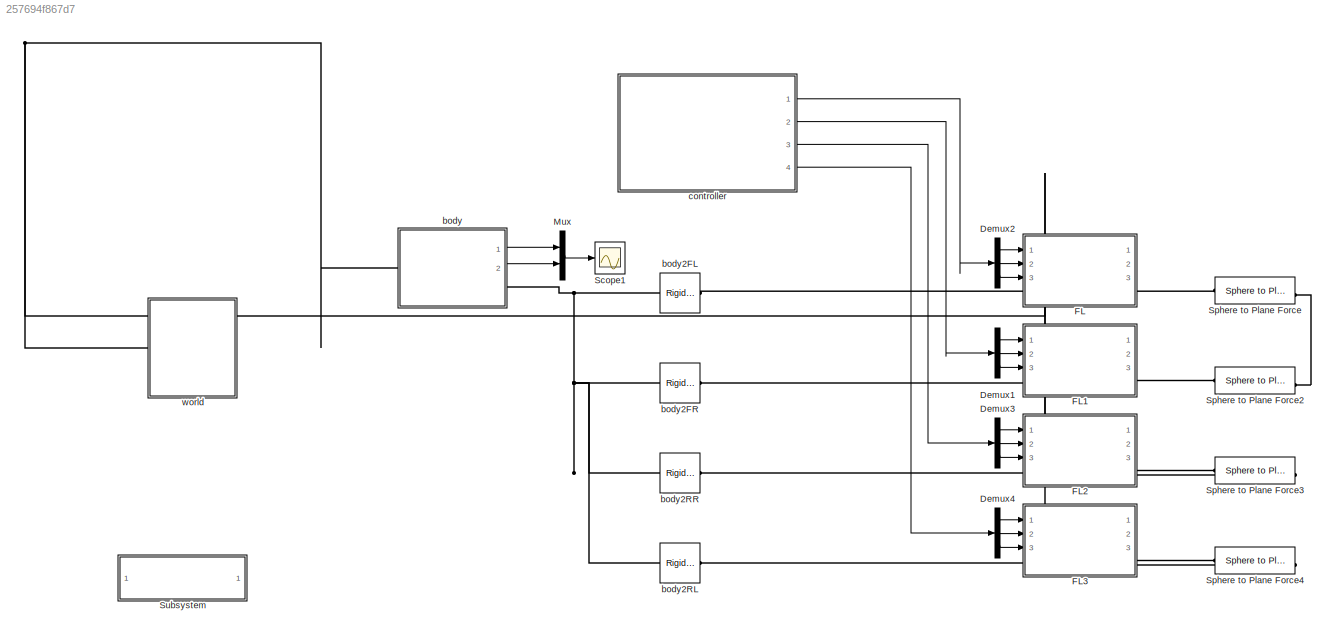
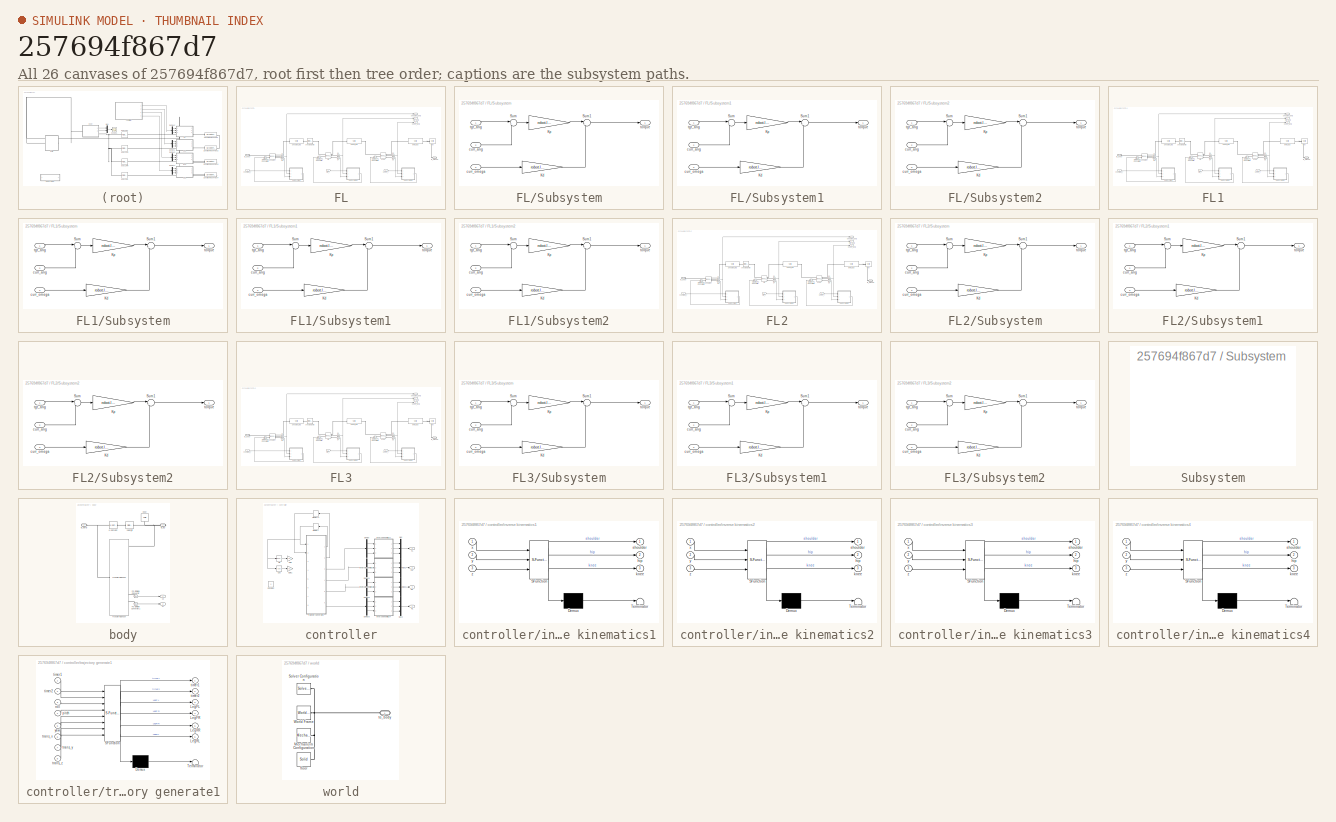
[diagram: thumbnail index - all 26 canvases of the model, root first then tree order]
MODEL slx_257694f867d7
KIND model
CONFIG AbsTol = auto
CONFIG EnableMultiTasking = on
CONFIG FixedStep = 0.001
CONFIG MaxStep = auto
CONFIG MinStep = auto
CONFIG RelTol = 1e-3
CONFIG SampleTimeConstraint = Unconstrained
CONFIG Solver = FixedStepAuto
CONFIG SolverName = FixedStepAuto
CONFIG StartTime = 0.0
CONFIG StopTime = 10
BLOCK [Demux] Demux1
  DisplayOption = bar
  Outputs = 3
  Ports = [1, 3]
BLOCK [Demux] Demux2
  DisplayOption = bar
  Outputs = 3
  Ports = [1, 3]
BLOCK [Demux] Demux3
  DisplayOption = bar
  Outputs = 3
  Ports = [1, 3]
BLOCK [Demux] Demux4
  DisplayOption = bar
  Outputs = 3
  Ports = [1, 3]
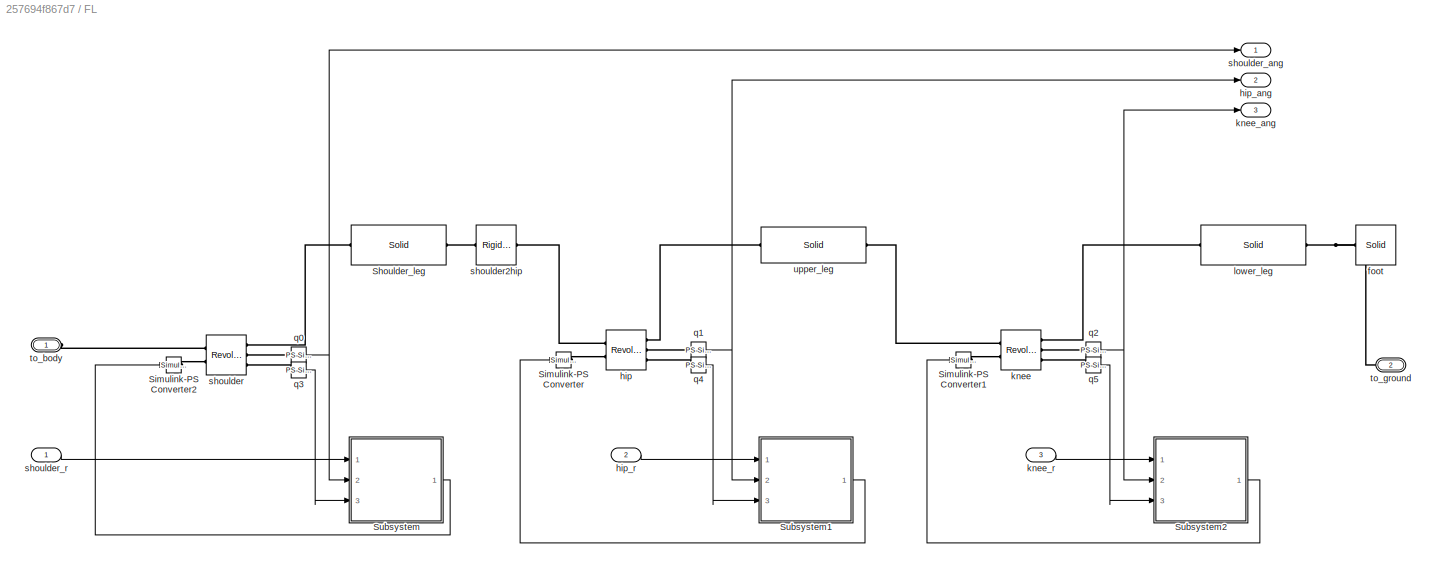
BLOCK [SubSystem] FL
  Ports = [3, 3, 0, 0, 0, 1, 1]
  RequestExecContextInheritance = off
BLOCK [Reference] FL/Shoulder_leg  REF=sm_lib/Body Elements/Solid
  Ports = [0, 0, 0, 0, 0, 1, 1]
  SourceBlock = sm_lib/Body Elements/Solid
  SourceProductBaseCode = MS
  SourceProductName = Simscape Multibody
  SourceType = Solid
BLOCK [Reference] FL/Simulink-PS Converter  REF=nesl_utility/Simulink-PS
Converter
  Ports = [1, 0, 0, 0, 0, 0, 1]
  SourceBlock = nesl_utility/Simulink-PS\nConverter
  SourceProductBaseCode = SS
  SourceProductName = Simscape
  SourceType = Simulink-PS\nConverter
BLOCK [Reference] FL/Simulink-PS Converter1  REF=nesl_utility/Simulink-PS
Converter
  Ports = [1, 0, 0, 0, 0, 0, 1]
  SourceBlock = nesl_utility/Simulink-PS\nConverter
  SourceProductBaseCode = SS
  SourceProductName = Simscape
  SourceType = Simulink-PS\nConverter
BLOCK [Reference] FL/Simulink-PS Converter2  REF=nesl_utility/Simulink-PS
Converter
  Ports = [1, 0, 0, 0, 0, 0, 1]
  SourceBlock = nesl_utility/Simulink-PS\nConverter
  SourceProductBaseCode = SS
  SourceProductName = Simscape
  SourceType = Simulink-PS\nConverter
BLOCK [SubSystem] FL/Subsystem
  Ports = [3, 1]
  RequestExecContextInheritance = off
BLOCK [Gain] FL/Subsystem/Kd
  Gain = robot.legPosKd
  OutDataTypeStr = Inherit: Inherit via internal rule
  ParamDataTypeStr = Inherit: Inherit via internal rule
  SaturateOnIntegerOverflow = off
BLOCK [Gain] FL/Subsystem/Kp
  Gain = robot.legPosKp
  OutDataTypeStr = Inherit: Inherit via internal rule
  ParamDataTypeStr = Inherit: Inherit via internal rule
  SaturateOnIntegerOverflow = off
BLOCK [Sum] FL/Subsystem/Sum
  IconShape = round
  InputSameDT = off
  Inputs = |+-
  OutDataTypeStr = Inherit: Inherit via internal rule
  Ports = [2, 1]
  SaturateOnIntegerOverflow = off
BLOCK [Sum] FL/Subsystem/Sum1
  IconShape = round
  InputSameDT = off
  Inputs = |+-
  OutDataTypeStr = Inherit: Inherit via internal rule
  Ports = [2, 1]
  SaturateOnIntegerOverflow = off
BLOCK [Inport] FL/Subsystem/curr_ang
  IconDisplay = Port number
  Port = 2
BLOCK [Inport] FL/Subsystem/curr_omega
  IconDisplay = Port number
  Port = 3
BLOCK [Inport] FL/Subsystem/tgt_ang
  IconDisplay = Port number
BLOCK [Outport] FL/Subsystem/torque
  IconDisplay = Port number
BLOCK [SubSystem] FL/Subsystem1
  Ports = [3, 1]
  RequestExecContextInheritance = off
BLOCK [Gain] FL/Subsystem1/Kd
  Gain = robot.legPosKd
  OutDataTypeStr = Inherit: Inherit via internal rule
  ParamDataTypeStr = Inherit: Inherit via internal rule
  SaturateOnIntegerOverflow = off
BLOCK [Gain] FL/Subsystem1/Kp
  Gain = robot.legPosKp
  OutDataTypeStr = Inherit: Inherit via internal rule
  ParamDataTypeStr = Inherit: Inherit via internal rule
  SaturateOnIntegerOverflow = off
BLOCK [Sum] FL/Subsystem1/Sum
  IconShape = round
  InputSameDT = off
  Inputs = |+-
  OutDataTypeStr = Inherit: Inherit via internal rule
  Ports = [2, 1]
  SaturateOnIntegerOverflow = off
BLOCK [Sum] FL/Subsystem1/Sum1
  IconShape = round
  InputSameDT = off
  Inputs = |+-
  OutDataTypeStr = Inherit: Inherit via internal rule
  Ports = [2, 1]
  SaturateOnIntegerOverflow = off
BLOCK [Inport] FL/Subsystem1/curr_ang
  IconDisplay = Port number
  Port = 2
BLOCK [Inport] FL/Subsystem1/curr_omega
  IconDisplay = Port number
  Port = 3
BLOCK [Inport] FL/Subsystem1/tgt_ang
  IconDisplay = Port number
BLOCK [Outport] FL/Subsystem1/torque
  IconDisplay = Port number
BLOCK [SubSystem] FL/Subsystem2
  Ports = [3, 1]
  RequestExecContextInheritance = off
BLOCK [Gain] FL/Subsystem2/Kd
  Gain = robot.legPosKd
  OutDataTypeStr = Inherit: Inherit via internal rule
  ParamDataTypeStr = Inherit: Inherit via internal rule
  SaturateOnIntegerOverflow = off
BLOCK [Gain] FL/Subsystem2/Kp
  Gain = robot.legPosKp
  OutDataTypeStr = Inherit: Inherit via internal rule
  ParamDataTypeStr = Inherit: Inherit via internal rule
  SaturateOnIntegerOverflow = off
BLOCK [Sum] FL/Subsystem2/Sum
  IconShape = round
  InputSameDT = off
  Inputs = |+-
  OutDataTypeStr = Inherit: Inherit via internal rule
  Ports = [2, 1]
  SaturateOnIntegerOverflow = off
BLOCK [Sum] FL/Subsystem2/Sum1
  IconShape = round
  InputSameDT = off
  Inputs = |+-
  OutDataTypeStr = Inherit: Inherit via internal rule
  Ports = [2, 1]
  SaturateOnIntegerOverflow = off
BLOCK [Inport] FL/Subsystem2/curr_ang
  IconDisplay = Port number
  Port = 2
BLOCK [Inport] FL/Subsystem2/curr_omega
  IconDisplay = Port number
  Port = 3
BLOCK [Inport] FL/Subsystem2/tgt_ang
  IconDisplay = Port number
BLOCK [Outport] FL/Subsystem2/torque
  IconDisplay = Port number
BLOCK [Reference] FL/foot  REF=sm_lib/Body Elements/Solid
  Ports = [0, 0, 0, 0, 0, 0, 1]
  SourceBlock = sm_lib/Body Elements/Solid
  SourceProductBaseCode = MS
  SourceProductName = Simscape Multibody
  SourceType = Solid
BLOCK [Reference] FL/hip  REF=sm_lib/Joints/Revolute Joint
  Ports = [0, 0, 0, 0, 0, 2, 3]
  SourceBlock = sm_lib/Joints/Revolute Joint
  SourceProductBaseCode = MS
  SourceProductName = Simscape Multibody
  SourceType = Revolute Joint
BLOCK [Outport] FL/hip_ang
  IconDisplay = Port number
  Port = 2
BLOCK [Inport] FL/hip_r
  IconDisplay = Port number
  Port = 2
BLOCK [Reference] FL/knee  REF=sm_lib/Joints/Revolute Joint
  Ports = [0, 0, 0, 0, 0, 2, 3]
  SourceBlock = sm_lib/Joints/Revolute Joint
  SourceProductBaseCode = MS
  SourceProductName = Simscape Multibody
  SourceType = Revolute Joint
BLOCK [Outport] FL/knee_ang
  IconDisplay = Port number
  Port = 3
BLOCK [Inport] FL/knee_r
  IconDisplay = Port number
  Port = 3
BLOCK [Reference] FL/lower_leg  REF=sm_lib/Body Elements/Solid
  Ports = [0, 0, 0, 0, 0, 1, 1]
  SourceBlock = sm_lib/Body Elements/Solid
  SourceProductBaseCode = MS
  SourceProductName = Simscape Multibody
  SourceType = Solid
BLOCK [Reference] FL/q0  REF=nesl_utility/PS-Simulink
Converter
  Ports = [0, 1, 0, 0, 0, 1]
  SourceBlock = nesl_utility/PS-Simulink\nConverter
  SourceProductBaseCode = SS
  SourceProductName = Simscape
  SourceType = PS-Simulink\nConverter
BLOCK [Reference] FL/q1  REF=nesl_utility/PS-Simulink
Converter
  Ports = [0, 1, 0, 0, 0, 1]
  SourceBlock = nesl_utility/PS-Simulink\nConverter
  SourceProductBaseCode = SS
  SourceProductName = Simscape
  SourceType = PS-Simulink\nConverter
BLOCK [Reference] FL/q2  REF=nesl_utility/PS-Simulink
Converter
  Ports = [0, 1, 0, 0, 0, 1]
  SourceBlock = nesl_utility/PS-Simulink\nConverter
  SourceProductBaseCode = SS
  SourceProductName = Simscape
  SourceType = PS-Simulink\nConverter
BLOCK [Reference] FL/q3  REF=nesl_utility/PS-Simulink
Converter
  Ports = [0, 1, 0, 0, 0, 1]
  SourceBlock = nesl_utility/PS-Simulink\nConverter
  SourceProductBaseCode = SS
  SourceProductName = Simscape
  SourceType = PS-Simulink\nConverter
BLOCK [Reference] FL/q4  REF=nesl_utility/PS-Simulink
Converter
  Ports = [0, 1, 0, 0, 0, 1]
  SourceBlock = nesl_utility/PS-Simulink\nConverter
  SourceProductBaseCode = SS
  SourceProductName = Simscape
  SourceType = PS-Simulink\nConverter
BLOCK [Reference] FL/q5  REF=nesl_utility/PS-Simulink
Converter
  Ports = [0, 1, 0, 0, 0, 1]
  SourceBlock = nesl_utility/PS-Simulink\nConverter
  SourceProductBaseCode = SS
  SourceProductName = Simscape
  SourceType = PS-Simulink\nConverter
BLOCK [Reference] FL/shoulder  REF=sm_lib/Joints/Revolute Joint
  Ports = [0, 0, 0, 0, 0, 2, 3]
  SourceBlock = sm_lib/Joints/Revolute Joint
  SourceProductBaseCode = MS
  SourceProductName = Simscape Multibody
  SourceType = Revolute Joint
BLOCK [Reference] FL/shoulder2hip  REF=sm_lib/Frames and
Transforms/Rigid
Transform
  Ports = [0, 0, 0, 0, 0, 1, 1]
  SourceBlock = sm_lib/Frames and\nTransforms/Rigid\nTransform
  SourceProductBaseCode = MS
  SourceProductName = Simscape Multibody
  SourceType = Rigid\nTransform
BLOCK [Outport] FL/shoulder_ang
  IconDisplay = Port number
BLOCK [Inport] FL/shoulder_r
  IconDisplay = Port number
BLOCK [PMIOPort] FL/to_body
  Side = Left
BLOCK [PMIOPort] FL/to_ground
  Port = 2
  Side = Right
BLOCK [Reference] FL/upper_leg  REF=sm_lib/Body Elements/Solid
  Ports = [0, 0, 0, 0, 0, 1, 1]
  SourceBlock = sm_lib/Body Elements/Solid
  SourceProductBaseCode = MS
  SourceProductName = Simscape Multibody
  SourceType = Solid
BLOCK [SubSystem] FL1
  Ports = [3, 3, 0, 0, 0, 1, 1]
  RequestExecContextInheritance = off
BLOCK [Reference] FL1/Shoulder_leg  REF=sm_lib/Body Elements/Solid
  Ports = [0, 0, 0, 0, 0, 1, 1]
  SourceBlock = sm_lib/Body Elements/Solid
  SourceProductBaseCode = MS
  SourceProductName = Simscape Multibody
  SourceType = Solid
BLOCK [Reference] FL1/Simulink-PS Converter  REF=nesl_utility/Simulink-PS
Converter
  Ports = [1, 0, 0, 0, 0, 0, 1]
  SourceBlock = nesl_utility/Simulink-PS\nConverter
  SourceProductBaseCode = SS
  SourceProductName = Simscape
  SourceType = Simulink-PS\nConverter
BLOCK [Reference] FL1/Simulink-PS Converter1  REF=nesl_utility/Simulink-PS
Converter
  Ports = [1, 0, 0, 0, 0, 0, 1]
  SourceBlock = nesl_utility/Simulink-PS\nConverter
  SourceProductBaseCode = SS
  SourceProductName = Simscape
  SourceType = Simulink-PS\nConverter
BLOCK [Reference] FL1/Simulink-PS Converter2  REF=nesl_utility/Simulink-PS
Converter
  Ports = [1, 0, 0, 0, 0, 0, 1]
  SourceBlock = nesl_utility/Simulink-PS\nConverter
  SourceProductBaseCode = SS
  SourceProductName = Simscape
  SourceType = Simulink-PS\nConverter
BLOCK [SubSystem] FL1/Subsystem
  Ports = [3, 1]
  RequestExecContextInheritance = off
BLOCK [Gain] FL1/Subsystem/Kd
  Gain = robot.legPosKd
  OutDataTypeStr = Inherit: Inherit via internal rule
  ParamDataTypeStr = Inherit: Inherit via internal rule
  SaturateOnIntegerOverflow = off
BLOCK [Gain] FL1/Subsystem/Kp
  Gain = robot.legPosKp
  OutDataTypeStr = Inherit: Inherit via internal rule
  ParamDataTypeStr = Inherit: Inherit via internal rule
  SaturateOnIntegerOverflow = off
BLOCK [Sum] FL1/Subsystem/Sum
  IconShape = round
  InputSameDT = off
  Inputs = |+-
  OutDataTypeStr = Inherit: Inherit via internal rule
  Ports = [2, 1]
  SaturateOnIntegerOverflow = off
BLOCK [Sum] FL1/Subsystem/Sum1
  IconShape = round
  InputSameDT = off
  Inputs = |+-
  OutDataTypeStr = Inherit: Inherit via internal rule
  Ports = [2, 1]
  SaturateOnIntegerOverflow = off
BLOCK [Inport] FL1/Subsystem/curr_ang
  IconDisplay = Port number
  Port = 2
BLOCK [Inport] FL1/Subsystem/curr_omega
  IconDisplay = Port number
  Port = 3
BLOCK [Inport] FL1/Subsystem/tgt_ang
  IconDisplay = Port number
BLOCK [Outport] FL1/Subsystem/torque
  IconDisplay = Port number
BLOCK [SubSystem] FL1/Subsystem1
  Ports = [3, 1]
  RequestExecContextInheritance = off
BLOCK [Gain] FL1/Subsystem1/Kd
  Gain = robot.legPosKd
  OutDataTypeStr = Inherit: Inherit via internal rule
  ParamDataTypeStr = Inherit: Inherit via internal rule
  SaturateOnIntegerOverflow = off
BLOCK [Gain] FL1/Subsystem1/Kp
  Gain = robot.legPosKp
  OutDataTypeStr = Inherit: Inherit via internal rule
  ParamDataTypeStr = Inherit: Inherit via internal rule
  SaturateOnIntegerOverflow = off
BLOCK [Sum] FL1/Subsystem1/Sum
  IconShape = round
  InputSameDT = off
  Inputs = |+-
  OutDataTypeStr = Inherit: Inherit via internal rule
  Ports = [2, 1]
  SaturateOnIntegerOverflow = off
BLOCK [Sum] FL1/Subsystem1/Sum1
  IconShape = round
  InputSameDT = off
  Inputs = |+-
  OutDataTypeStr = Inherit: Inherit via internal rule
  Ports = [2, 1]
  SaturateOnIntegerOverflow = off
BLOCK [Inport] FL1/Subsystem1/curr_ang
  IconDisplay = Port number
  Port = 2
BLOCK [Inport] FL1/Subsystem1/curr_omega
  IconDisplay = Port number
  Port = 3
BLOCK [Inport] FL1/Subsystem1/tgt_ang
  IconDisplay = Port number
BLOCK [Outport] FL1/Subsystem1/torque
  IconDisplay = Port number
BLOCK [SubSystem] FL1/Subsystem2
  Ports = [3, 1]
  RequestExecContextInheritance = off
BLOCK [Gain] FL1/Subsystem2/Kd
  Gain = robot.legPosKd
  OutDataTypeStr = Inherit: Inherit via internal rule
  ParamDataTypeStr = Inherit: Inherit via internal rule
  SaturateOnIntegerOverflow = off
BLOCK [Gain] FL1/Subsystem2/Kp
  Gain = robot.legPosKp
  OutDataTypeStr = Inherit: Inherit via internal rule
  ParamDataTypeStr = Inherit: Inherit via internal rule
  SaturateOnIntegerOverflow = off
BLOCK [Sum] FL1/Subsystem2/Sum
  IconShape = round
  InputSameDT = off
  Inputs = |+-
  OutDataTypeStr = Inherit: Inherit via internal rule
  Ports = [2, 1]
  SaturateOnIntegerOverflow = off
BLOCK [Sum] FL1/Subsystem2/Sum1
  IconShape = round
  InputSameDT = off
  Inputs = |+-
  OutDataTypeStr = Inherit: Inherit via internal rule
  Ports = [2, 1]
  SaturateOnIntegerOverflow = off
BLOCK [Inport] FL1/Subsystem2/curr_ang
  IconDisplay = Port number
  Port = 2
BLOCK [Inport] FL1/Subsystem2/curr_omega
  IconDisplay = Port number
  Port = 3
BLOCK [Inport] FL1/Subsystem2/tgt_ang
  IconDisplay = Port number
BLOCK [Outport] FL1/Subsystem2/torque
  IconDisplay = Port number
BLOCK [Reference] FL1/foot  REF=sm_lib/Body Elements/Solid
  Ports = [0, 0, 0, 0, 0, 0, 1]
  SourceBlock = sm_lib/Body Elements/Solid
  SourceProductBaseCode = MS
  SourceProductName = Simscape Multibody
  SourceType = Solid
BLOCK [Reference] FL1/hip  REF=sm_lib/Joints/Revolute Joint
  Ports = [0, 0, 0, 0, 0, 2, 3]
  SourceBlock = sm_lib/Joints/Revolute Joint
  SourceProductBaseCode = MS
  SourceProductName = Simscape Multibody
  SourceType = Revolute Joint
BLOCK [Outport] FL1/hip_ang
  IconDisplay = Port number
  Port = 2
BLOCK [Inport] FL1/hip_r
  IconDisplay = Port number
  Port = 2
BLOCK [Reference] FL1/knee  REF=sm_lib/Joints/Revolute Joint
  Ports = [0, 0, 0, 0, 0, 2, 3]
  SourceBlock = sm_lib/Joints/Revolute Joint
  SourceProductBaseCode = MS
  SourceProductName = Simscape Multibody
  SourceType = Revolute Joint
BLOCK [Outport] FL1/knee_ang
  IconDisplay = Port number
  Port = 3
BLOCK [Inport] FL1/knee_r
  IconDisplay = Port number
  Port = 3
BLOCK [Reference] FL1/lower_leg  REF=sm_lib/Body Elements/Solid
  Ports = [0, 0, 0, 0, 0, 1, 1]
  SourceBlock = sm_lib/Body Elements/Solid
  SourceProductBaseCode = MS
  SourceProductName = Simscape Multibody
  SourceType = Solid
BLOCK [Reference] FL1/q0  REF=nesl_utility/PS-Simulink
Converter
  Ports = [0, 1, 0, 0, 0, 1]
  SourceBlock = nesl_utility/PS-Simulink\nConverter
  SourceProductBaseCode = SS
  SourceProductName = Simscape
  SourceType = PS-Simulink\nConverter
BLOCK [Reference] FL1/q1  REF=nesl_utility/PS-Simulink
Converter
  Ports = [0, 1, 0, 0, 0, 1]
  SourceBlock = nesl_utility/PS-Simulink\nConverter
  SourceProductBaseCode = SS
  SourceProductName = Simscape
  SourceType = PS-Simulink\nConverter
BLOCK [Reference] FL1/q2  REF=nesl_utility/PS-Simulink
Converter
  Ports = [0, 1, 0, 0, 0, 1]
  SourceBlock = nesl_utility/PS-Simulink\nConverter
  SourceProductBaseCode = SS
  SourceProductName = Simscape
  SourceType = PS-Simulink\nConverter
BLOCK [Reference] FL1/q3  REF=nesl_utility/PS-Simulink
Converter
  Ports = [0, 1, 0, 0, 0, 1]
  SourceBlock = nesl_utility/PS-Simulink\nConverter
  SourceProductBaseCode = SS
  SourceProductName = Simscape
  SourceType = PS-Simulink\nConverter
BLOCK [Reference] FL1/q4  REF=nesl_utility/PS-Simulink
Converter
  Ports = [0, 1, 0, 0, 0, 1]
  SourceBlock = nesl_utility/PS-Simulink\nConverter
  SourceProductBaseCode = SS
  SourceProductName = Simscape
  SourceType = PS-Simulink\nConverter
BLOCK [Reference] FL1/q5  REF=nesl_utility/PS-Simulink
Converter
  Ports = [0, 1, 0, 0, 0, 1]
  SourceBlock = nesl_utility/PS-Simulink\nConverter
  SourceProductBaseCode = SS
  SourceProductName = Simscape
  SourceType = PS-Simulink\nConverter
BLOCK [Reference] FL1/shoulder  REF=sm_lib/Joints/Revolute Joint
  Ports = [0, 0, 0, 0, 0, 2, 3]
  SourceBlock = sm_lib/Joints/Revolute Joint
  SourceProductBaseCode = MS
  SourceProductName = Simscape Multibody
  SourceType = Revolute Joint
BLOCK [Reference] FL1/shoulder2hip  REF=sm_lib/Frames and
Transforms/Rigid
Transform
  Ports = [0, 0, 0, 0, 0, 1, 1]
  SourceBlock = sm_lib/Frames and\nTransforms/Rigid\nTransform
  SourceProductBaseCode = MS
  SourceProductName = Simscape Multibody
  SourceType = Rigid\nTransform
BLOCK [Outport] FL1/shoulder_ang
  IconDisplay = Port number
BLOCK [Inport] FL1/shoulder_r
  IconDisplay = Port number
BLOCK [PMIOPort] FL1/to_body
  Side = Left
BLOCK [PMIOPort] FL1/to_ground
  Port = 2
  Side = Right
BLOCK [Reference] FL1/upper_leg  REF=sm_lib/Body Elements/Solid
  Ports = [0, 0, 0, 0, 0, 1, 1]
  SourceBlock = sm_lib/Body Elements/Solid
  SourceProductBaseCode = MS
  SourceProductName = Simscape Multibody
  SourceType = Solid
BLOCK [SubSystem] FL2
  Ports = [3, 3, 0, 0, 0, 1, 1]
  RequestExecContextInheritance = off
BLOCK [Reference] FL2/Shoulder_leg  REF=sm_lib/Body Elements/Solid
  Ports = [0, 0, 0, 0, 0, 1, 1]
  SourceBlock = sm_lib/Body Elements/Solid
  SourceProductBaseCode = MS
  SourceProductName = Simscape Multibody
  SourceType = Solid
BLOCK [Reference] FL2/Simulink-PS Converter  REF=nesl_utility/Simulink-PS
Converter
  Ports = [1, 0, 0, 0, 0, 0, 1]
  SourceBlock = nesl_utility/Simulink-PS\nConverter
  SourceProductBaseCode = SS
  SourceProductName = Simscape
  SourceType = Simulink-PS\nConverter
BLOCK [Reference] FL2/Simulink-PS Converter1  REF=nesl_utility/Simulink-PS
Converter
  Ports = [1, 0, 0, 0, 0, 0, 1]
  SourceBlock = nesl_utility/Simulink-PS\nConverter
  SourceProductBaseCode = SS
  SourceProductName = Simscape
  SourceType = Simulink-PS\nConverter
BLOCK [Reference] FL2/Simulink-PS Converter2  REF=nesl_utility/Simulink-PS
Converter
  Ports = [1, 0, 0, 0, 0, 0, 1]
  SourceBlock = nesl_utility/Simulink-PS\nConverter
  SourceProductBaseCode = SS
  SourceProductName = Simscape
  SourceType = Simulink-PS\nConverter
BLOCK [SubSystem] FL2/Subsystem
  Ports = [3, 1]
  RequestExecContextInheritance = off
BLOCK [Gain] FL2/Subsystem/Kd
  Gain = robot.legPosKd
  OutDataTypeStr = Inherit: Inherit via internal rule
  ParamDataTypeStr = Inherit: Inherit via internal rule
  SaturateOnIntegerOverflow = off
BLOCK [Gain] FL2/Subsystem/Kp
  Gain = robot.legPosKp
  OutDataTypeStr = Inherit: Inherit via internal rule
  ParamDataTypeStr = Inherit: Inherit via internal rule
  SaturateOnIntegerOverflow = off
BLOCK [Sum] FL2/Subsystem/Sum
  IconShape = round
  InputSameDT = off
  Inputs = |+-
  OutDataTypeStr = Inherit: Inherit via internal rule
  Ports = [2, 1]
  SaturateOnIntegerOverflow = off
BLOCK [Sum] FL2/Subsystem/Sum1
  IconShape = round
  InputSameDT = off
  Inputs = |+-
  OutDataTypeStr = Inherit: Inherit via internal rule
  Ports = [2, 1]
  SaturateOnIntegerOverflow = off
BLOCK [Inport] FL2/Subsystem/curr_ang
  IconDisplay = Port number
  Port = 2
BLOCK [Inport] FL2/Subsystem/curr_omega
  IconDisplay = Port number
  Port = 3
BLOCK [Inport] FL2/Subsystem/tgt_ang
  IconDisplay = Port number
BLOCK [Outport] FL2/Subsystem/torque
  IconDisplay = Port number
BLOCK [SubSystem] FL2/Subsystem1
  Ports = [3, 1]
  RequestExecContextInheritance = off
BLOCK [Gain] FL2/Subsystem1/Kd
  Gain = robot.legPosKd
  OutDataTypeStr = Inherit: Inherit via internal rule
  ParamDataTypeStr = Inherit: Inherit via internal rule
  SaturateOnIntegerOverflow = off
BLOCK [Gain] FL2/Subsystem1/Kp
  Gain = robot.legPosKp
  OutDataTypeStr = Inherit: Inherit via internal rule
  ParamDataTypeStr = Inherit: Inherit via internal rule
  SaturateOnIntegerOverflow = off
BLOCK [Sum] FL2/Subsystem1/Sum
  IconShape = round
  InputSameDT = off
  Inputs = |+-
  OutDataTypeStr = Inherit: Inherit via internal rule
  Ports = [2, 1]
  SaturateOnIntegerOverflow = off
BLOCK [Sum] FL2/Subsystem1/Sum1
  IconShape = round
  InputSameDT = off
  Inputs = |+-
  OutDataTypeStr = Inherit: Inherit via internal rule
  Ports = [2, 1]
  SaturateOnIntegerOverflow = off
BLOCK [Inport] FL2/Subsystem1/curr_ang
  IconDisplay = Port number
  Port = 2
BLOCK [Inport] FL2/Subsystem1/curr_omega
  IconDisplay = Port number
  Port = 3
BLOCK [Inport] FL2/Subsystem1/tgt_ang
  IconDisplay = Port number
BLOCK [Outport] FL2/Subsystem1/torque
  IconDisplay = Port number
BLOCK [SubSystem] FL2/Subsystem2
  Ports = [3, 1]
  RequestExecContextInheritance = off
BLOCK [Gain] FL2/Subsystem2/Kd
  Gain = robot.legPosKd
  OutDataTypeStr = Inherit: Inherit via internal rule
  ParamDataTypeStr = Inherit: Inherit via internal rule
  SaturateOnIntegerOverflow = off
BLOCK [Gain] FL2/Subsystem2/Kp
  Gain = robot.legPosKp
  OutDataTypeStr = Inherit: Inherit via internal rule
  ParamDataTypeStr = Inherit: Inherit via internal rule
  SaturateOnIntegerOverflow = off
BLOCK [Sum] FL2/Subsystem2/Sum
  IconShape = round
  InputSameDT = off
  Inputs = |+-
  OutDataTypeStr = Inherit: Inherit via internal rule
  Ports = [2, 1]
  SaturateOnIntegerOverflow = off
BLOCK [Sum] FL2/Subsystem2/Sum1
  IconShape = round
  InputSameDT = off
  Inputs = |+-
  OutDataTypeStr = Inherit: Inherit via internal rule
  Ports = [2, 1]
  SaturateOnIntegerOverflow = off
BLOCK [Inport] FL2/Subsystem2/curr_ang
  IconDisplay = Port number
  Port = 2
BLOCK [Inport] FL2/Subsystem2/curr_omega
  IconDisplay = Port number
  Port = 3
BLOCK [Inport] FL2/Subsystem2/tgt_ang
  IconDisplay = Port number
BLOCK [Outport] FL2/Subsystem2/torque
  IconDisplay = Port number
BLOCK [Reference] FL2/foot  REF=sm_lib/Body Elements/Solid
  Ports = [0, 0, 0, 0, 0, 0, 1]
  SourceBlock = sm_lib/Body Elements/Solid
  SourceProductBaseCode = MS
  SourceProductName = Simscape Multibody
  SourceType = Solid
BLOCK [Reference] FL2/hip  REF=sm_lib/Joints/Revolute Joint
  Ports = [0, 0, 0, 0, 0, 2, 3]
  SourceBlock = sm_lib/Joints/Revolute Joint
  SourceProductBaseCode = MS
  SourceProductName = Simscape Multibody
  SourceType = Revolute Joint
BLOCK [Outport] FL2/hip_ang
  IconDisplay = Port number
  Port = 2
BLOCK [Inport] FL2/hip_r
  IconDisplay = Port number
  Port = 2
BLOCK [Reference] FL2/knee  REF=sm_lib/Joints/Revolute Joint
  Ports = [0, 0, 0, 0, 0, 2, 3]
  SourceBlock = sm_lib/Joints/Revolute Joint
  SourceProductBaseCode = MS
  SourceProductName = Simscape Multibody
  SourceType = Revolute Joint
BLOCK [Outport] FL2/knee_ang
  IconDisplay = Port number
  Port = 3
BLOCK [Inport] FL2/knee_r
  IconDisplay = Port number
  Port = 3
BLOCK [Reference] FL2/lower_leg  REF=sm_lib/Body Elements/Solid
  Ports = [0, 0, 0, 0, 0, 1, 1]
  SourceBlock = sm_lib/Body Elements/Solid
  SourceProductBaseCode = MS
  SourceProductName = Simscape Multibody
  SourceType = Solid
BLOCK [Reference] FL2/q0  REF=nesl_utility/PS-Simulink
Converter
  Ports = [0, 1, 0, 0, 0, 1]
  SourceBlock = nesl_utility/PS-Simulink\nConverter
  SourceProductBaseCode = SS
  SourceProductName = Simscape
  SourceType = PS-Simulink\nConverter
BLOCK [Reference] FL2/q1  REF=nesl_utility/PS-Simulink
Converter
  Ports = [0, 1, 0, 0, 0, 1]
  SourceBlock = nesl_utility/PS-Simulink\nConverter
  SourceProductBaseCode = SS
  SourceProductName = Simscape
  SourceType = PS-Simulink\nConverter
BLOCK [Reference] FL2/q2  REF=nesl_utility/PS-Simulink
Converter
  Ports = [0, 1, 0, 0, 0, 1]
  SourceBlock = nesl_utility/PS-Simulink\nConverter
  SourceProductBaseCode = SS
  SourceProductName = Simscape
  SourceType = PS-Simulink\nConverter
BLOCK [Reference] FL2/q3  REF=nesl_utility/PS-Simulink
Converter
  Ports = [0, 1, 0, 0, 0, 1]
  SourceBlock = nesl_utility/PS-Simulink\nConverter
  SourceProductBaseCode = SS
  SourceProductName = Simscape
  SourceType = PS-Simulink\nConverter
BLOCK [Reference] FL2/q4  REF=nesl_utility/PS-Simulink
Converter
  Ports = [0, 1, 0, 0, 0, 1]
  SourceBlock = nesl_utility/PS-Simulink\nConverter
  SourceProductBaseCode = SS
  SourceProductName = Simscape
  SourceType = PS-Simulink\nConverter
BLOCK [Reference] FL2/q5  REF=nesl_utility/PS-Simulink
Converter
  Ports = [0, 1, 0, 0, 0, 1]
  SourceBlock = nesl_utility/PS-Simulink\nConverter
  SourceProductBaseCode = SS
  SourceProductName = Simscape
  SourceType = PS-Simulink\nConverter
BLOCK [Reference] FL2/shoulder  REF=sm_lib/Joints/Revolute Joint
  Ports = [0, 0, 0, 0, 0, 2, 3]
  SourceBlock = sm_lib/Joints/Revolute Joint
  SourceProductBaseCode = MS
  SourceProductName = Simscape Multibody
  SourceType = Revolute Joint
BLOCK [Reference] FL2/shoulder2hip  REF=sm_lib/Frames and
Transforms/Rigid
Transform
  Ports = [0, 0, 0, 0, 0, 1, 1]
  SourceBlock = sm_lib/Frames and\nTransforms/Rigid\nTransform
  SourceProductBaseCode = MS
  SourceProductName = Simscape Multibody
  SourceType = Rigid\nTransform
BLOCK [Outport] FL2/shoulder_ang
  IconDisplay = Port number
BLOCK [Inport] FL2/shoulder_r
  IconDisplay = Port number
BLOCK [PMIOPort] FL2/to_body
  Side = Left
BLOCK [PMIOPort] FL2/to_ground
  Port = 2
  Side = Right
BLOCK [Reference] FL2/upper_leg  REF=sm_lib/Body Elements/Solid
  Ports = [0, 0, 0, 0, 0, 1, 1]
  SourceBlock = sm_lib/Body Elements/Solid
  SourceProductBaseCode = MS
  SourceProductName = Simscape Multibody
  SourceType = Solid
BLOCK [SubSystem] FL3
  Ports = [3, 3, 0, 0, 0, 1, 1]
  RequestExecContextInheritance = off
BLOCK [Reference] FL3/Shoulder_leg  REF=sm_lib/Body Elements/Solid
  Ports = [0, 0, 0, 0, 0, 1, 1]
  SourceBlock = sm_lib/Body Elements/Solid
  SourceProductBaseCode = MS
  SourceProductName = Simscape Multibody
  SourceType = Solid
BLOCK [Reference] FL3/Simulink-PS Converter  REF=nesl_utility/Simulink-PS
Converter
  Ports = [1, 0, 0, 0, 0, 0, 1]
  SourceBlock = nesl_utility/Simulink-PS\nConverter
  SourceProductBaseCode = SS
  SourceProductName = Simscape
  SourceType = Simulink-PS\nConverter
BLOCK [Reference] FL3/Simulink-PS Converter1  REF=nesl_utility/Simulink-PS
Converter
  Ports = [1, 0, 0, 0, 0, 0, 1]
  SourceBlock = nesl_utility/Simulink-PS\nConverter
  SourceProductBaseCode = SS
  SourceProductName = Simscape
  SourceType = Simulink-PS\nConverter
BLOCK [Reference] FL3/Simulink-PS Converter2  REF=nesl_utility/Simulink-PS
Converter
  Ports = [1, 0, 0, 0, 0, 0, 1]
  SourceBlock = nesl_utility/Simulink-PS\nConverter
  SourceProductBaseCode = SS
  SourceProductName = Simscape
  SourceType = Simulink-PS\nConverter
BLOCK [SubSystem] FL3/Subsystem
  Ports = [3, 1]
  RequestExecContextInheritance = off
BLOCK [Gain] FL3/Subsystem/Kd
  Gain = robot.legPosKd
  OutDataTypeStr = Inherit: Inherit via internal rule
  ParamDataTypeStr = Inherit: Inherit via internal rule
  SaturateOnIntegerOverflow = off
BLOCK [Gain] FL3/Subsystem/Kp
  Gain = robot.legPosKp
  OutDataTypeStr = Inherit: Inherit via internal rule
  ParamDataTypeStr = Inherit: Inherit via internal rule
  SaturateOnIntegerOverflow = off
BLOCK [Sum] FL3/Subsystem/Sum
  IconShape = round
  InputSameDT = off
  Inputs = |+-
  OutDataTypeStr = Inherit: Inherit via internal rule
  Ports = [2, 1]
  SaturateOnIntegerOverflow = off
BLOCK [Sum] FL3/Subsystem/Sum1
  IconShape = round
  InputSameDT = off
  Inputs = |+-
  OutDataTypeStr = Inherit: Inherit via internal rule
  Ports = [2, 1]
  SaturateOnIntegerOverflow = off
BLOCK [Inport] FL3/Subsystem/curr_ang
  IconDisplay = Port number
  Port = 2
BLOCK [Inport] FL3/Subsystem/curr_omega
  IconDisplay = Port number
  Port = 3
BLOCK [Inport] FL3/Subsystem/tgt_ang
  IconDisplay = Port number
BLOCK [Outport] FL3/Subsystem/torque
  IconDisplay = Port number
BLOCK [SubSystem] FL3/Subsystem1
  Ports = [3, 1]
  RequestExecContextInheritance = off
BLOCK [Gain] FL3/Subsystem1/Kd
  Gain = robot.legPosKd
  OutDataTypeStr = Inherit: Inherit via internal rule
  ParamDataTypeStr = Inherit: Inherit via internal rule
  SaturateOnIntegerOverflow = off
BLOCK [Gain] FL3/Subsystem1/Kp
  Gain = robot.legPosKp
  OutDataTypeStr = Inherit: Inherit via internal rule
  ParamDataTypeStr = Inherit: Inherit via internal rule
  SaturateOnIntegerOverflow = off
BLOCK [Sum] FL3/Subsystem1/Sum
  IconShape = round
  InputSameDT = off
  Inputs = |+-
  OutDataTypeStr = Inherit: Inherit via internal rule
  Ports = [2, 1]
  SaturateOnIntegerOverflow = off
BLOCK [Sum] FL3/Subsystem1/Sum1
  IconShape = round
  InputSameDT = off
  Inputs = |+-
  OutDataTypeStr = Inherit: Inherit via internal rule
  Ports = [2, 1]
  SaturateOnIntegerOverflow = off
BLOCK [Inport] FL3/Subsystem1/curr_ang
  IconDisplay = Port number
  Port = 2
BLOCK [Inport] FL3/Subsystem1/curr_omega
  IconDisplay = Port number
  Port = 3
BLOCK [Inport] FL3/Subsystem1/tgt_ang
  IconDisplay = Port number
BLOCK [Outport] FL3/Subsystem1/torque
  IconDisplay = Port number
BLOCK [SubSystem] FL3/Subsystem2
  Ports = [3, 1]
  RequestExecContextInheritance = off
BLOCK [Gain] FL3/Subsystem2/Kd
  Gain = robot.legPosKd
  OutDataTypeStr = Inherit: Inherit via internal rule
  ParamDataTypeStr = Inherit: Inherit via internal rule
  SaturateOnIntegerOverflow = off
BLOCK [Gain] FL3/Subsystem2/Kp
  Gain = robot.legPosKp
  OutDataTypeStr = Inherit: Inherit via internal rule
  ParamDataTypeStr = Inherit: Inherit via internal rule
  SaturateOnIntegerOverflow = off
BLOCK [Sum] FL3/Subsystem2/Sum
  IconShape = round
  InputSameDT = off
  Inputs = |+-
  OutDataTypeStr = Inherit: Inherit via internal rule
  Ports = [2, 1]
  SaturateOnIntegerOverflow = off
BLOCK [Sum] FL3/Subsystem2/Sum1
  IconShape = round
  InputSameDT = off
  Inputs = |+-
  OutDataTypeStr = Inherit: Inherit via internal rule
  Ports = [2, 1]
  SaturateOnIntegerOverflow = off
BLOCK [Inport] FL3/Subsystem2/curr_ang
  IconDisplay = Port number
  Port = 2
BLOCK [Inport] FL3/Subsystem2/curr_omega
  IconDisplay = Port number
  Port = 3
BLOCK [Inport] FL3/Subsystem2/tgt_ang
  IconDisplay = Port number
BLOCK [Outport] FL3/Subsystem2/torque
  IconDisplay = Port number
BLOCK [Reference] FL3/foot  REF=sm_lib/Body Elements/Solid
  Ports = [0, 0, 0, 0, 0, 0, 1]
  SourceBlock = sm_lib/Body Elements/Solid
  SourceProductBaseCode = MS
  SourceProductName = Simscape Multibody
  SourceType = Solid
BLOCK [Reference] FL3/hip  REF=sm_lib/Joints/Revolute Joint
  Ports = [0, 0, 0, 0, 0, 2, 3]
  SourceBlock = sm_lib/Joints/Revolute Joint
  SourceProductBaseCode = MS
  SourceProductName = Simscape Multibody
  SourceType = Revolute Joint
BLOCK [Outport] FL3/hip_ang
  IconDisplay = Port number
  Port = 2
BLOCK [Inport] FL3/hip_r
  IconDisplay = Port number
  Port = 2
BLOCK [Reference] FL3/knee  REF=sm_lib/Joints/Revolute Joint
  Ports = [0, 0, 0, 0, 0, 2, 3]
  SourceBlock = sm_lib/Joints/Revolute Joint
  SourceProductBaseCode = MS
  SourceProductName = Simscape Multibody
  SourceType = Revolute Joint
BLOCK [Outport] FL3/knee_ang
  IconDisplay = Port number
  Port = 3
BLOCK [Inport] FL3/knee_r
  IconDisplay = Port number
  Port = 3
BLOCK [Reference] FL3/lower_leg  REF=sm_lib/Body Elements/Solid
  Ports = [0, 0, 0, 0, 0, 1, 1]
  SourceBlock = sm_lib/Body Elements/Solid
  SourceProductBaseCode = MS
  SourceProductName = Simscape Multibody
  SourceType = Solid
BLOCK [Reference] FL3/q0  REF=nesl_utility/PS-Simulink
Converter
  Ports = [0, 1, 0, 0, 0, 1]
  SourceBlock = nesl_utility/PS-Simulink\nConverter
  SourceProductBaseCode = SS
  SourceProductName = Simscape
  SourceType = PS-Simulink\nConverter
BLOCK [Reference] FL3/q1  REF=nesl_utility/PS-Simulink
Converter
  Ports = [0, 1, 0, 0, 0, 1]
  SourceBlock = nesl_utility/PS-Simulink\nConverter
  SourceProductBaseCode = SS
  SourceProductName = Simscape
  SourceType = PS-Simulink\nConverter
BLOCK [Reference] FL3/q2  REF=nesl_utility/PS-Simulink
Converter
  Ports = [0, 1, 0, 0, 0, 1]
  SourceBlock = nesl_utility/PS-Simulink\nConverter
  SourceProductBaseCode = SS
  SourceProductName = Simscape
  SourceType = PS-Simulink\nConverter
BLOCK [Reference] FL3/q3  REF=nesl_utility/PS-Simulink
Converter
  Ports = [0, 1, 0, 0, 0, 1]
  SourceBlock = nesl_utility/PS-Simulink\nConverter
  SourceProductBaseCode = SS
  SourceProductName = Simscape
  SourceType = PS-Simulink\nConverter
BLOCK [Reference] FL3/q4  REF=nesl_utility/PS-Simulink
Converter
  Ports = [0, 1, 0, 0, 0, 1]
  SourceBlock = nesl_utility/PS-Simulink\nConverter
  SourceProductBaseCode = SS
  SourceProductName = Simscape
  SourceType = PS-Simulink\nConverter
BLOCK [Reference] FL3/q5  REF=nesl_utility/PS-Simulink
Converter
  Ports = [0, 1, 0, 0, 0, 1]
  SourceBlock = nesl_utility/PS-Simulink\nConverter
  SourceProductBaseCode = SS
  SourceProductName = Simscape
  SourceType = PS-Simulink\nConverter
BLOCK [Reference] FL3/shoulder  REF=sm_lib/Joints/Revolute Joint
  Ports = [0, 0, 0, 0, 0, 2, 3]
  SourceBlock = sm_lib/Joints/Revolute Joint
  SourceProductBaseCode = MS
  SourceProductName = Simscape Multibody
  SourceType = Revolute Joint
BLOCK [Reference] FL3/shoulder2hip  REF=sm_lib/Frames and
Transforms/Rigid
Transform
  Ports = [0, 0, 0, 0, 0, 1, 1]
  SourceBlock = sm_lib/Frames and\nTransforms/Rigid\nTransform
  SourceProductBaseCode = MS
  SourceProductName = Simscape Multibody
  SourceType = Rigid\nTransform
BLOCK [Outport] FL3/shoulder_ang
  IconDisplay = Port number
BLOCK [Inport] FL3/shoulder_r
  IconDisplay = Port number
BLOCK [PMIOPort] FL3/to_body
  Side = Left
BLOCK [PMIOPort] FL3/to_ground
  Port = 2
  Side = Right
BLOCK [Reference] FL3/upper_leg  REF=sm_lib/Body Elements/Solid
  Ports = [0, 0, 0, 0, 0, 1, 1]
  SourceBlock = sm_lib/Body Elements/Solid
  SourceProductBaseCode = MS
  SourceProductName = Simscape Multibody
  SourceType = Solid
BLOCK [Mux] Mux
  DisplayOption = bar
  Inputs = 2
  Ports = [2, 1]
BLOCK [Scope] Scope1
  Floating = off
  NumInputPorts = 1
  Ports = [1]
  ScopeSpecificationString = Simulink.scopes.TimeScopeBlockCfg('CurrentConfiguration', extmgr.ConfigurationSet(extmgr.Configuration('Core','General UI',true),extmgr.Configuration('Core','Source UI',true),extmgr.Configuration('Sources','WiredSimulink',true,'DataLoggingVariableName','ScopeData1'),extmgr.Configuration('Visuals','Time Domain',true,'SerializedDisplays',{struct('MinYLimReal','-1.4319','MaxYLimReal','0.8173','YLabel...<+1414ch>
BLOCK [Reference] Sphere to Plane Force  REF=Contact_Forces_Lib/3D/Sphere to Plane Force
  Ports = [0, 1, 0, 0, 0, 1, 1]
  SourceBlock = Contact_Forces_Lib/3D/Sphere to Plane Force
  SourceProductName = Simscape Multibody Contact Forces Library
  SourceType = Sphere to Plane Force
BLOCK [Reference] Sphere to Plane Force2  REF=Contact_Forces_Lib/3D/Sphere to Plane Force
  Ports = [0, 1, 0, 0, 0, 1, 1]
  SourceBlock = Contact_Forces_Lib/3D/Sphere to Plane Force
  SourceProductName = Simscape Multibody Contact Forces Library
  SourceType = Sphere to Plane Force
BLOCK [Reference] Sphere to Plane Force3  REF=Contact_Forces_Lib/3D/Sphere to Plane Force
  Ports = [0, 1, 0, 0, 0, 1, 1]
  SourceBlock = Contact_Forces_Lib/3D/Sphere to Plane Force
  SourceProductName = Simscape Multibody Contact Forces Library
  SourceType = Sphere to Plane Force
BLOCK [Reference] Sphere to Plane Force4  REF=Contact_Forces_Lib/3D/Sphere to Plane Force
  Ports = [0, 1, 0, 0, 0, 1, 1]
  SourceBlock = Contact_Forces_Lib/3D/Sphere to Plane Force
  SourceProductName = Simscape Multibody Contact Forces Library
  SourceType = Sphere to Plane Force
BLOCK [SubSystem] Subsystem
  OpenFcn = open_system('sm_lib')
  Ports = []
  RequestExecContextInheritance = off
  ShowPortLabels = none
BLOCK [SubSystem] body
  Ports = [0, 2, 0, 0, 0, 1, 1]
  RequestExecContextInheritance = off
BLOCK [Reference] body/6-DOF Joint  REF=sm_lib/Joints/6-DOF Joint
  Ports = [0, 0, 0, 0, 0, 1, 1]
  SourceBlock = sm_lib/Joints/6-DOF Joint
  SourceProductBaseCode = MS
  SourceProductName = Simscape Multibody
  SourceType = 6-DOF Joint
BLOCK [Reference] body/PS-Simulink Converter  REF=nesl_utility/PS-Simulink
Converter
  Ports = [0, 1, 0, 0, 0, 1]
  SourceBlock = nesl_utility/PS-Simulink\nConverter
  SourceProductBaseCode = SS
  SourceProductName = Simscape
  SourceType = PS-Simulink\nConverter
BLOCK [Reference] body/PS-Simulink Converter1  REF=nesl_utility/PS-Simulink
Converter
  Ports = [0, 1, 0, 0, 0, 1]
  SourceBlock = nesl_utility/PS-Simulink\nConverter
  SourceProductBaseCode = SS
  SourceProductName = Simscape
  SourceType = PS-Simulink\nConverter
BLOCK [Reference] body/Transform Sensor  REF=sm_lib/Frames and
Transforms/Transform
Sensor
  Ports = [0, 0, 0, 0, 0, 1, 10]
  SourceBlock = sm_lib/Frames and\nTransforms/Transform\nSensor
  SourceProductBaseCode = MS
  SourceProductName = Simscape Multibody
  SourceType = Transform\nSensor
BLOCK [Reference] body/body  REF=sm_lib/Body Elements/Solid
  Ports = [0, 0, 0, 0, 0, 0, 1]
  SourceBlock = sm_lib/Body Elements/Solid
  SourceProductBaseCode = MS
  SourceProductName = Simscape Multibody
  SourceType = Solid
BLOCK [Reference] body/height_lift  REF=sm_lib/Frames and
Transforms/Rigid
Transform
  Ports = [0, 0, 0, 0, 0, 1, 1]
  SourceBlock = sm_lib/Frames and\nTransforms/Rigid\nTransform
  SourceProductBaseCode = MS
  SourceProductName = Simscape Multibody
  SourceType = Rigid\nTransform
BLOCK [PMIOPort] body/to_leg
  Side = Right
BLOCK [PMIOPort] body/to_world
  Port = 2
  Side = Left
BLOCK [Outport] body/vx
  IconDisplay = Port number
BLOCK [Outport] body/vy
  IconDisplay = Port number
  Port = 2
BLOCK [Reference] body2FL  REF=sm_lib/Frames and
Transforms/Rigid
Transform
  Ports = [0, 0, 0, 0, 0, 1, 1]
  SourceBlock = sm_lib/Frames and\nTransforms/Rigid\nTransform
  SourceProductBaseCode = MS
  SourceProductName = Simscape Multibody
  SourceType = Rigid\nTransform
BLOCK [Reference] body2FR  REF=sm_lib/Frames and
Transforms/Rigid
Transform
  Ports = [0, 0, 0, 0, 0, 1, 1]
  SourceBlock = sm_lib/Frames and\nTransforms/Rigid\nTransform
  SourceProductBaseCode = MS
  SourceProductName = Simscape Multibody
  SourceType = Rigid\nTransform
BLOCK [Reference] body2RL  REF=sm_lib/Frames and
Transforms/Rigid
Transform
  Ports = [0, 0, 0, 0, 0, 1, 1]
  SourceBlock = sm_lib/Frames and\nTransforms/Rigid\nTransform
  SourceProductBaseCode = MS
  SourceProductName = Simscape Multibody
  SourceType = Rigid\nTransform
BLOCK [Reference] body2RR  REF=sm_lib/Frames and
Transforms/Rigid
Transform
  Ports = [0, 0, 0, 0, 0, 1, 1]
  SourceBlock = sm_lib/Frames and\nTransforms/Rigid\nTransform
  SourceProductBaseCode = MS
  SourceProductName = Simscape Multibody
  SourceType = Rigid\nTransform
BLOCK [SubSystem] controller
  Ports = [0, 4]
  RequestExecContextInheritance = off
BLOCK [Constant] controller/Constant
  Commented = on
  Value = 0
BLOCK [Trigonometry] controller/Cos
  Operator = cos
  Ports = [1, 1]
BLOCK [Demux] controller/Demux
  DisplayOption = bar
  Outputs = 3
  Ports = [1, 3]
BLOCK [Demux] controller/Demux1
  DisplayOption = bar
  Outputs = 3
  Ports = [1, 3]
BLOCK [Demux] controller/Demux2
  DisplayOption = bar
  Outputs = 3
  Ports = [1, 3]
BLOCK [Demux] controller/Demux3
  DisplayOption = bar
  Outputs = 3
  Ports = [1, 3]
BLOCK [Outport] controller/FL
  IconDisplay = Port number
BLOCK [Outport] controller/FR
  IconDisplay = Port number
  Port = 2
BLOCK [Gain] controller/Gain
  Gain = 0.1
  OutDataTypeStr = Inherit: Inherit via internal rule
  ParamDataTypeStr = Inherit: Inherit via internal rule
  SaturateOnIntegerOverflow = off
BLOCK [Gain] controller/Gain1
  Gain = 0.1
  OutDataTypeStr = Inherit: Inherit via internal rule
  ParamDataTypeStr = Inherit: Inherit via internal rule
  SaturateOnIntegerOverflow = off
BLOCK [Memory] controller/Memory
BLOCK [Memory] controller/Memory1
BLOCK [Mux] controller/Mux
  DisplayOption = bar
  Inputs = 3
  Ports = [3, 1]
BLOCK [Mux] controller/Mux1
  DisplayOption = bar
  Inputs = 3
  Ports = [3, 1]
BLOCK [Mux] controller/Mux2
  DisplayOption = bar
  Inputs = 3
  Ports = [3, 1]
BLOCK [Mux] controller/Mux3
  DisplayOption = bar
  Inputs = 3
  Ports = [3, 1]
BLOCK [Outport] controller/RL
  IconDisplay = Port number
  Port = 4
BLOCK [Outport] controller/RR 
  IconDisplay = Port number
  Port = 3
BLOCK [Trigonometry] controller/Sin
  Ports = [1, 1]
BLOCK [SubSystem] controller/inverse kinematics1
  ErrorFcn = Stateflow.Translate.translate
  PermitHierarchicalResolution = ExplicitOnly
  Ports = [3, 3]
  RequestExecContextInheritance = off
  SFBlockType = MATLAB Function
  TreatAsAtomicUnit = on
BLOCK [Demux] controller/inverse kinematics1/ Demux 
  Outputs = 1
  Ports = [1, 1]
BLOCK [S-Function] controller/inverse kinematics1/ SFunction 
  EnableBusSupport = on
  FunctionName = sf_sfun
  PortCounts = [3 4]
  Ports = [3, 4]
  SFcnIsStateOwnerBlock = off
  SFunctionDeploymentMode = off
  Tag = Stateflow S-Function PosControl_Quadruped_v3_walk 1
BLOCK [Terminator] controller/inverse kinematics1/ Terminator 
BLOCK [Outport] controller/inverse kinematics1/hip
  IconDisplay = Port number
  Port = 2
BLOCK [Outport] controller/inverse kinematics1/knee
  IconDisplay = Port number
  Port = 3
BLOCK [Outport] controller/inverse kinematics1/shoulder
  IconDisplay = Port number
BLOCK [Inport] controller/inverse kinematics1/x
  IconDisplay = Port number
BLOCK [Inport] controller/inverse kinematics1/y
  IconDisplay = Port number
  Port = 2
BLOCK [Inport] controller/inverse kinematics1/z
  IconDisplay = Port number
  Port = 3
BLOCK [SubSystem] controller/inverse kinematics2
  ErrorFcn = Stateflow.Translate.translate
  PermitHierarchicalResolution = ExplicitOnly
  Ports = [3, 3]
  RequestExecContextInheritance = off
  SFBlockType = MATLAB Function
  TreatAsAtomicUnit = on
BLOCK [Demux] controller/inverse kinematics2/ Demux 
  Outputs = 1
  Ports = [1, 1]
BLOCK [S-Function] controller/inverse kinematics2/ SFunction 
  EnableBusSupport = on
  FunctionName = sf_sfun
  PortCounts = [3 4]
  Ports = [3, 4]
  SFcnIsStateOwnerBlock = off
  SFunctionDeploymentMode = off
  Tag = Stateflow S-Function PosControl_Quadruped_v3_walk 5
BLOCK [Terminator] controller/inverse kinematics2/ Terminator 
BLOCK [Outport] controller/inverse kinematics2/hip
  IconDisplay = Port number
  Port = 2
BLOCK [Outport] controller/inverse kinematics2/knee
  IconDisplay = Port number
  Port = 3
BLOCK [Outport] controller/inverse kinematics2/shoulder
  IconDisplay = Port number
BLOCK [Inport] controller/inverse kinematics2/x
  IconDisplay = Port number
BLOCK [Inport] controller/inverse kinematics2/y
  IconDisplay = Port number
  Port = 2
BLOCK [Inport] controller/inverse kinematics2/z
  IconDisplay = Port number
  Port = 3
BLOCK [SubSystem] controller/inverse kinematics3
  ErrorFcn = Stateflow.Translate.translate
  PermitHierarchicalResolution = ExplicitOnly
  Ports = [3, 3]
  RequestExecContextInheritance = off
  SFBlockType = MATLAB Function
  TreatAsAtomicUnit = on
BLOCK [Demux] controller/inverse kinematics3/ Demux 
  Outputs = 1
  Ports = [1, 1]
BLOCK [S-Function] controller/inverse kinematics3/ SFunction 
  EnableBusSupport = on
  FunctionName = sf_sfun
  PortCounts = [3 4]
  Ports = [3, 4]
  SFcnIsStateOwnerBlock = off
  SFunctionDeploymentMode = off
  Tag = Stateflow S-Function PosControl_Quadruped_v3_walk 2
BLOCK [Terminator] controller/inverse kinematics3/ Terminator 
BLOCK [Outport] controller/inverse kinematics3/hip
  IconDisplay = Port number
  Port = 2
BLOCK [Outport] controller/inverse kinematics3/knee
  IconDisplay = Port number
  Port = 3
BLOCK [Outport] controller/inverse kinematics3/shoulder
  IconDisplay = Port number
BLOCK [Inport] controller/inverse kinematics3/x
  IconDisplay = Port number
BLOCK [Inport] controller/inverse kinematics3/y
  IconDisplay = Port number
  Port = 2
BLOCK [Inport] controller/inverse kinematics3/z
  IconDisplay = Port number
  Port = 3
BLOCK [SubSystem] controller/inverse kinematics4
  ErrorFcn = Stateflow.Translate.translate
  PermitHierarchicalResolution = ExplicitOnly
  Ports = [3, 3]
  RequestExecContextInheritance = off
  SFBlockType = MATLAB Function
  TreatAsAtomicUnit = on
BLOCK [Demux] controller/inverse kinematics4/ Demux 
  Outputs = 1
  Ports = [1, 1]
BLOCK [S-Function] controller/inverse kinematics4/ SFunction 
  EnableBusSupport = on
  FunctionName = sf_sfun
  PortCounts = [3 4]
  Ports = [3, 4]
  SFcnIsStateOwnerBlock = off
  SFunctionDeploymentMode = off
  Tag = Stateflow S-Function PosControl_Quadruped_v3_walk 3
BLOCK [Terminator] controller/inverse kinematics4/ Terminator 
BLOCK [Outport] controller/inverse kinematics4/hip
  IconDisplay = Port number
  Port = 2
BLOCK [Outport] controller/inverse kinematics4/knee
  IconDisplay = Port number
  Port = 3
BLOCK [Outport] controller/inverse kinematics4/shoulder
  IconDisplay = Port number
BLOCK [Inport] controller/inverse kinematics4/x
  IconDisplay = Port number
BLOCK [Inport] controller/inverse kinematics4/y
  IconDisplay = Port number
  Port = 2
BLOCK [Inport] controller/inverse kinematics4/z
  IconDisplay = Port number
  Port = 3
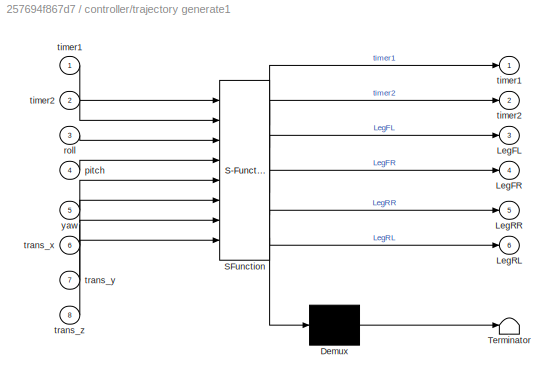
BLOCK [SubSystem] controller/trajectory generate1
  ErrorFcn = Stateflow.Translate.translate
  PermitHierarchicalResolution = ExplicitOnly
  Ports = [8, 6]
  RequestExecContextInheritance = off
  SFBlockType = MATLAB Function
  TreatAsAtomicUnit = on
BLOCK [Demux] controller/trajectory generate1/ Demux 
  Outputs = 1
  Ports = [1, 1]
BLOCK [S-Function] controller/trajectory generate1/ SFunction 
  EnableBusSupport = on
  FunctionName = sf_sfun
  PortCounts = [8 7]
  Ports = [8, 7]
  SFcnIsStateOwnerBlock = off
  SFunctionDeploymentMode = off
  Tag = Stateflow S-Function PosControl_Quadruped_v3_walk 4
BLOCK [Terminator] controller/trajectory generate1/ Terminator 
BLOCK [Outport] controller/trajectory generate1/LegFL
  IconDisplay = Port number
  Port = 3
BLOCK [Outport] controller/trajectory generate1/LegFR
  IconDisplay = Port number
  Port = 4
BLOCK [Outport] controller/trajectory generate1/LegRL
  IconDisplay = Port number
  Port = 6
BLOCK [Outport] controller/trajectory generate1/LegRR
  IconDisplay = Port number
  Port = 5
BLOCK [Inport] controller/trajectory generate1/pitch
  IconDisplay = Port number
  Port = 4
BLOCK [Inport] controller/trajectory generate1/roll
  IconDisplay = Port number
  Port = 3
BLOCK [Outport] controller/trajectory generate1/timer1
  IconDisplay = Port number
BLOCK [Inport] controller/trajectory generate1/timer1 
  IconDisplay = Port number
BLOCK [Outport] controller/trajectory generate1/timer2
  IconDisplay = Port number
  Port = 2
BLOCK [Inport] controller/trajectory generate1/timer2 
  IconDisplay = Port number
  Port = 2
BLOCK [Inport] controller/trajectory generate1/trans_x
  IconDisplay = Port number
  Port = 6
BLOCK [Inport] controller/trajectory generate1/trans_y
  IconDisplay = Port number
  Port = 7
BLOCK [Inport] controller/trajectory generate1/trans_z
  IconDisplay = Port number
  Port = 8
BLOCK [Inport] controller/trajectory generate1/yaw
  IconDisplay = Port number
  Port = 5
BLOCK [SubSystem] world
  Ports = [0, 0, 0, 0, 0, 0, 1]
  RequestExecContextInheritance = off
BLOCK [Reference] world/Mechanism Configuration  REF=sm_lib/Utilities/Mechanism
Configuration
  Ports = [0, 0, 0, 0, 0, 0, 1]
  SourceBlock = sm_lib/Utilities/Mechanism\nConfiguration
  SourceProductBaseCode = MS
  SourceProductName = Simscape Multibody
  SourceType = Mechanism\nConfiguration
BLOCK [Reference] world/Solver Configuration  REF=nesl_utility/Solver
Configuration
  Ports = [0, 0, 0, 0, 0, 0, 1]
  SourceBlock = nesl_utility/Solver\nConfiguration
  SourceProductBaseCode = SS
  SourceProductName = Simscape
  SourceType = Solver\nConfiguration
BLOCK [Reference] world/World Frame  REF=sm_lib/Frames and
Transforms/World Frame
  Ports = [0, 0, 0, 0, 0, 0, 1]
  SourceBlock = sm_lib/Frames and\nTransforms/World Frame
  SourceProductBaseCode = MS
  SourceProductName = Simscape Multibody
  SourceType = World Frame
BLOCK [Reference] world/floor  REF=sm_lib/Body Elements/Solid
  Ports = [0, 0, 0, 0, 0, 0, 1]
  SourceBlock = sm_lib/Body Elements/Solid
  SourceProductBaseCode = MS
  SourceProductName = Simscape Multibody
  SourceType = Solid
BLOCK [PMIOPort] world/to_body
  Side = Right
LINE Demux1:1 -> FL1:1
LINE Demux1:2 -> FL1:2
LINE Demux1:3 -> FL1:3
LINE Demux2:1 -> FL:1
LINE Demux2:2 -> FL:2
LINE Demux2:3 -> FL:3
LINE Demux3:1 -> FL2:1
LINE Demux3:2 -> FL2:2
LINE Demux3:3 -> FL2:3
LINE Demux4:1 -> FL3:1
LINE Demux4:2 -> FL3:2
LINE Demux4:3 -> FL3:3
LINE FL/Subsystem/Kd:1 -> FL/Subsystem/Sum1:2
LINE FL/Subsystem/Kp:1 -> FL/Subsystem/Sum1:1
LINE FL/Subsystem/Sum1:1 -> FL/Subsystem/torque:1
LINE FL/Subsystem/Sum:1 -> FL/Subsystem/Kp:1
LINE FL/Subsystem/curr_ang:1 -> FL/Subsystem/Sum:2
LINE FL/Subsystem/curr_omega:1 -> FL/Subsystem/Kd:1
LINE FL/Subsystem/tgt_ang:1 -> FL/Subsystem/Sum:1
LINE FL/Subsystem1/Kd:1 -> FL/Subsystem1/Sum1:2
LINE FL/Subsystem1/Kp:1 -> FL/Subsystem1/Sum1:1
LINE FL/Subsystem1/Sum1:1 -> FL/Subsystem1/torque:1
LINE FL/Subsystem1/Sum:1 -> FL/Subsystem1/Kp:1
LINE FL/Subsystem1/curr_ang:1 -> FL/Subsystem1/Sum:2
LINE FL/Subsystem1/curr_omega:1 -> FL/Subsystem1/Kd:1
LINE FL/Subsystem1/tgt_ang:1 -> FL/Subsystem1/Sum:1
LINE FL/Subsystem1:1 -> FL/Simulink-PS Converter:1
LINE FL/Subsystem2/Kd:1 -> FL/Subsystem2/Sum1:2
LINE FL/Subsystem2/Kp:1 -> FL/Subsystem2/Sum1:1
LINE FL/Subsystem2/Sum1:1 -> FL/Subsystem2/torque:1
LINE FL/Subsystem2/Sum:1 -> FL/Subsystem2/Kp:1
LINE FL/Subsystem2/curr_ang:1 -> FL/Subsystem2/Sum:2
LINE FL/Subsystem2/curr_omega:1 -> FL/Subsystem2/Kd:1
LINE FL/Subsystem2/tgt_ang:1 -> FL/Subsystem2/Sum:1
LINE FL/Subsystem2:1 -> FL/Simulink-PS Converter1:1
LINE FL/Subsystem:1 -> FL/Simulink-PS Converter2:1
LINE FL/hip_r:1 -> FL/Subsystem1:1
LINE FL/knee_r:1 -> FL/Subsystem2:1
NET FL/q0:1 -> FL/Subsystem:2, FL/shoulder_ang:1
NET FL/q1:1 -> FL/Subsystem1:2, FL/hip_ang:1
NET FL/q2:1 -> FL/Subsystem2:2, FL/knee_ang:1
LINE FL/q3:1 -> FL/Subsystem:3
LINE FL/q4:1 -> FL/Subsystem1:3
LINE FL/q5:1 -> FL/Subsystem2:3
LINE FL/shoulder_r:1 -> FL/Subsystem:1
LINE FL1/Subsystem/Kd:1 -> FL1/Subsystem/Sum1:2
LINE FL1/Subsystem/Kp:1 -> FL1/Subsystem/Sum1:1
LINE FL1/Subsystem/Sum1:1 -> FL1/Subsystem/torque:1
LINE FL1/Subsystem/Sum:1 -> FL1/Subsystem/Kp:1
LINE FL1/Subsystem/curr_ang:1 -> FL1/Subsystem/Sum:2
LINE FL1/Subsystem/curr_omega:1 -> FL1/Subsystem/Kd:1
LINE FL1/Subsystem/tgt_ang:1 -> FL1/Subsystem/Sum:1
LINE FL1/Subsystem1/Kd:1 -> FL1/Subsystem1/Sum1:2
LINE FL1/Subsystem1/Kp:1 -> FL1/Subsystem1/Sum1:1
LINE FL1/Subsystem1/Sum1:1 -> FL1/Subsystem1/torque:1
LINE FL1/Subsystem1/Sum:1 -> FL1/Subsystem1/Kp:1
LINE FL1/Subsystem1/curr_ang:1 -> FL1/Subsystem1/Sum:2
LINE FL1/Subsystem1/curr_omega:1 -> FL1/Subsystem1/Kd:1
LINE FL1/Subsystem1/tgt_ang:1 -> FL1/Subsystem1/Sum:1
LINE FL1/Subsystem1:1 -> FL1/Simulink-PS Converter:1
LINE FL1/Subsystem2/Kd:1 -> FL1/Subsystem2/Sum1:2
LINE FL1/Subsystem2/Kp:1 -> FL1/Subsystem2/Sum1:1
LINE FL1/Subsystem2/Sum1:1 -> FL1/Subsystem2/torque:1
LINE FL1/Subsystem2/Sum:1 -> FL1/Subsystem2/Kp:1
LINE FL1/Subsystem2/curr_ang:1 -> FL1/Subsystem2/Sum:2
LINE FL1/Subsystem2/curr_omega:1 -> FL1/Subsystem2/Kd:1
LINE FL1/Subsystem2/tgt_ang:1 -> FL1/Subsystem2/Sum:1
LINE FL1/Subsystem2:1 -> FL1/Simulink-PS Converter1:1
LINE FL1/Subsystem:1 -> FL1/Simulink-PS Converter2:1
LINE FL1/hip_r:1 -> FL1/Subsystem1:1
LINE FL1/knee_r:1 -> FL1/Subsystem2:1
NET FL1/q0:1 -> FL1/Subsystem:2, FL1/shoulder_ang:1
NET FL1/q1:1 -> FL1/Subsystem1:2, FL1/hip_ang:1
NET FL1/q2:1 -> FL1/Subsystem2:2, FL1/knee_ang:1
LINE FL1/q3:1 -> FL1/Subsystem:3
LINE FL1/q4:1 -> FL1/Subsystem1:3
LINE FL1/q5:1 -> FL1/Subsystem2:3
LINE FL1/shoulder_r:1 -> FL1/Subsystem:1
LINE FL2/Subsystem/Kd:1 -> FL2/Subsystem/Sum1:2
LINE FL2/Subsystem/Kp:1 -> FL2/Subsystem/Sum1:1
LINE FL2/Subsystem/Sum1:1 -> FL2/Subsystem/torque:1
LINE FL2/Subsystem/Sum:1 -> FL2/Subsystem/Kp:1
LINE FL2/Subsystem/curr_ang:1 -> FL2/Subsystem/Sum:2
LINE FL2/Subsystem/curr_omega:1 -> FL2/Subsystem/Kd:1
LINE FL2/Subsystem/tgt_ang:1 -> FL2/Subsystem/Sum:1
LINE FL2/Subsystem1/Kd:1 -> FL2/Subsystem1/Sum1:2
LINE FL2/Subsystem1/Kp:1 -> FL2/Subsystem1/Sum1:1
LINE FL2/Subsystem1/Sum1:1 -> FL2/Subsystem1/torque:1
LINE FL2/Subsystem1/Sum:1 -> FL2/Subsystem1/Kp:1
LINE FL2/Subsystem1/curr_ang:1 -> FL2/Subsystem1/Sum:2
LINE FL2/Subsystem1/curr_omega:1 -> FL2/Subsystem1/Kd:1
LINE FL2/Subsystem1/tgt_ang:1 -> FL2/Subsystem1/Sum:1
LINE FL2/Subsystem1:1 -> FL2/Simulink-PS Converter:1
LINE FL2/Subsystem2/Kd:1 -> FL2/Subsystem2/Sum1:2
LINE FL2/Subsystem2/Kp:1 -> FL2/Subsystem2/Sum1:1
LINE FL2/Subsystem2/Sum1:1 -> FL2/Subsystem2/torque:1
LINE FL2/Subsystem2/Sum:1 -> FL2/Subsystem2/Kp:1
LINE FL2/Subsystem2/curr_ang:1 -> FL2/Subsystem2/Sum:2
LINE FL2/Subsystem2/curr_omega:1 -> FL2/Subsystem2/Kd:1
LINE FL2/Subsystem2/tgt_ang:1 -> FL2/Subsystem2/Sum:1
LINE FL2/Subsystem2:1 -> FL2/Simulink-PS Converter1:1
LINE FL2/Subsystem:1 -> FL2/Simulink-PS Converter2:1
LINE FL2/hip_r:1 -> FL2/Subsystem1:1
LINE FL2/knee_r:1 -> FL2/Subsystem2:1
NET FL2/q0:1 -> FL2/Subsystem:2, FL2/shoulder_ang:1
NET FL2/q1:1 -> FL2/Subsystem1:2, FL2/hip_ang:1
NET FL2/q2:1 -> FL2/Subsystem2:2, FL2/knee_ang:1
LINE FL2/q3:1 -> FL2/Subsystem:3
LINE FL2/q4:1 -> FL2/Subsystem1:3
LINE FL2/q5:1 -> FL2/Subsystem2:3
LINE FL2/shoulder_r:1 -> FL2/Subsystem:1
LINE FL3/Subsystem/Kd:1 -> FL3/Subsystem/Sum1:2
LINE FL3/Subsystem/Kp:1 -> FL3/Subsystem/Sum1:1
LINE FL3/Subsystem/Sum1:1 -> FL3/Subsystem/torque:1
LINE FL3/Subsystem/Sum:1 -> FL3/Subsystem/Kp:1
LINE FL3/Subsystem/curr_ang:1 -> FL3/Subsystem/Sum:2
LINE FL3/Subsystem/curr_omega:1 -> FL3/Subsystem/Kd:1
LINE FL3/Subsystem/tgt_ang:1 -> FL3/Subsystem/Sum:1
LINE FL3/Subsystem1/Kd:1 -> FL3/Subsystem1/Sum1:2
LINE FL3/Subsystem1/Kp:1 -> FL3/Subsystem1/Sum1:1
LINE FL3/Subsystem1/Sum1:1 -> FL3/Subsystem1/torque:1
LINE FL3/Subsystem1/Sum:1 -> FL3/Subsystem1/Kp:1
LINE FL3/Subsystem1/curr_ang:1 -> FL3/Subsystem1/Sum:2
LINE FL3/Subsystem1/curr_omega:1 -> FL3/Subsystem1/Kd:1
LINE FL3/Subsystem1/tgt_ang:1 -> FL3/Subsystem1/Sum:1
LINE FL3/Subsystem1:1 -> FL3/Simulink-PS Converter:1
LINE FL3/Subsystem2/Kd:1 -> FL3/Subsystem2/Sum1:2
LINE FL3/Subsystem2/Kp:1 -> FL3/Subsystem2/Sum1:1
LINE FL3/Subsystem2/Sum1:1 -> FL3/Subsystem2/torque:1
LINE FL3/Subsystem2/Sum:1 -> FL3/Subsystem2/Kp:1
LINE FL3/Subsystem2/curr_ang:1 -> FL3/Subsystem2/Sum:2
LINE FL3/Subsystem2/curr_omega:1 -> FL3/Subsystem2/Kd:1
LINE FL3/Subsystem2/tgt_ang:1 -> FL3/Subsystem2/Sum:1
LINE FL3/Subsystem2:1 -> FL3/Simulink-PS Converter1:1
LINE FL3/Subsystem:1 -> FL3/Simulink-PS Converter2:1
LINE FL3/hip_r:1 -> FL3/Subsystem1:1
LINE FL3/knee_r:1 -> FL3/Subsystem2:1
NET FL3/q0:1 -> FL3/Subsystem:2, FL3/shoulder_ang:1
NET FL3/q1:1 -> FL3/Subsystem1:2, FL3/hip_ang:1
NET FL3/q2:1 -> FL3/Subsystem2:2, FL3/knee_ang:1
LINE FL3/q3:1 -> FL3/Subsystem:3
LINE FL3/q4:1 -> FL3/Subsystem1:3
LINE FL3/q5:1 -> FL3/Subsystem2:3
LINE FL3/shoulder_r:1 -> FL3/Subsystem:1
LINE Mux:1 -> Scope1:1
LINE body/PS-Simulink Converter1:1 -> body/vy:1
LINE body/PS-Simulink Converter:1 -> body/vx:1
LINE body:1 -> Mux:1
LINE body:2 -> Mux:2
LINE controller/Cos:1 -> controller/Gain1:1
LINE controller/Demux1:1 -> controller/inverse kinematics1:1
LINE controller/Demux1:2 -> controller/inverse kinematics1:2
LINE controller/Demux1:3 -> controller/inverse kinematics1:3
LINE controller/Demux2:1 -> controller/inverse kinematics3:1
LINE controller/Demux2:2 -> controller/inverse kinematics3:2
LINE controller/Demux2:3 -> controller/inverse kinematics3:3
LINE controller/Demux3:1 -> controller/inverse kinematics4:1
LINE controller/Demux3:2 -> controller/inverse kinematics4:2
LINE controller/Demux3:3 -> controller/inverse kinematics4:3
LINE controller/Demux:1 -> controller/inverse kinematics2:1
LINE controller/Demux:2 -> controller/inverse kinematics2:2
LINE controller/Demux:3 -> controller/inverse kinematics2:3
LINE controller/Memory1:1 -> controller/trajectory generate1:2
NET controller/Memory:1 -> controller/Cos:1, controller/Sin:1, controller/trajectory generate1:1
LINE controller/Mux1:1 -> controller/FR:1
LINE controller/Mux2:1 -> controller/RR :1
LINE controller/Mux3:1 -> controller/RL:1
LINE controller/Mux:1 -> controller/FL:1
LINE controller/Sin:1 -> controller/Gain:1
LINE controller/inverse kinematics1:1 -> controller/Mux1:1
LINE controller/inverse kinematics1:2 -> controller/Mux1:2
LINE controller/inverse kinematics1:3 -> controller/Mux1:3
LINE controller/inverse kinematics2:1 -> controller/Mux:1
LINE controller/inverse kinematics2:2 -> controller/Mux:2
LINE controller/inverse kinematics2:3 -> controller/Mux:3
LINE controller/inverse kinematics3:1 -> controller/Mux2:1
LINE controller/inverse kinematics3:2 -> controller/Mux2:2
LINE controller/inverse kinematics3:3 -> controller/Mux2:3
LINE controller/inverse kinematics4:1 -> controller/Mux3:1
LINE controller/inverse kinematics4:2 -> controller/Mux3:2
LINE controller/inverse kinematics4:3 -> controller/Mux3:3
LINE controller/trajectory generate1:1 -> controller/Memory:1
LINE controller/trajectory generate1:2 -> controller/Memory1:1
LINE controller/trajectory generate1:3 -> controller/Demux:1
LINE controller/trajectory generate1:4 -> controller/Demux1:1
LINE controller/trajectory generate1:5 -> controller/Demux2:1
LINE controller/trajectory generate1:6 -> controller/Demux3:1
LINE controller:1 -> Demux2:1
LINE controller:2 -> Demux1:1
LINE controller:3 -> Demux3:1
LINE controller:4 -> Demux4:1
PLINE FL/Shoulder_leg:LConn1 -- FL/shoulder:RConn1
PLINE FL/Shoulder_leg:RConn1 -- FL/shoulder2hip:LConn1
PLINE FL/Simulink-PS Converter1:RConn1 -- FL/knee:LConn2
PLINE FL/Simulink-PS Converter2:RConn1 -- FL/shoulder:LConn2
PLINE FL/Simulink-PS Converter:RConn1 -- FL/hip:LConn2
PNET net1: FL/foot:RConn1 -- FL/lower_leg:RConn1 -- FL/to_ground:RConn1
PLINE FL/hip:LConn1 -- FL/shoulder2hip:RConn1
PLINE FL/hip:RConn1 -- FL/upper_leg:LConn1
PLINE FL/hip:RConn2 -- FL/q1:LConn1
PLINE FL/hip:RConn3 -- FL/q4:LConn1
PLINE FL/knee:LConn1 -- FL/upper_leg:RConn1
PLINE FL/knee:RConn1 -- FL/lower_leg:LConn1
PLINE FL/knee:RConn2 -- FL/q2:LConn1
PLINE FL/knee:RConn3 -- FL/q5:LConn1
PLINE FL/q0:LConn1 -- FL/shoulder:RConn2
PLINE FL/q3:LConn1 -- FL/shoulder:RConn3
PLINE FL/shoulder:LConn1 -- FL/to_body:RConn1
PLINE FL1/Shoulder_leg:LConn1 -- FL1/shoulder:RConn1
PLINE FL1/Shoulder_leg:RConn1 -- FL1/shoulder2hip:LConn1
PLINE FL1/Simulink-PS Converter1:RConn1 -- FL1/knee:LConn2
PLINE FL1/Simulink-PS Converter2:RConn1 -- FL1/shoulder:LConn2
PLINE FL1/Simulink-PS Converter:RConn1 -- FL1/hip:LConn2
PNET net2: FL1/foot:RConn1 -- FL1/lower_leg:RConn1 -- FL1/to_ground:RConn1
PLINE FL1/hip:LConn1 -- FL1/shoulder2hip:RConn1
PLINE FL1/hip:RConn1 -- FL1/upper_leg:LConn1
PLINE FL1/hip:RConn2 -- FL1/q1:LConn1
PLINE FL1/hip:RConn3 -- FL1/q4:LConn1
PLINE FL1/knee:LConn1 -- FL1/upper_leg:RConn1
PLINE FL1/knee:RConn1 -- FL1/lower_leg:LConn1
PLINE FL1/knee:RConn2 -- FL1/q2:LConn1
PLINE FL1/knee:RConn3 -- FL1/q5:LConn1
PLINE FL1/q0:LConn1 -- FL1/shoulder:RConn2
PLINE FL1/q3:LConn1 -- FL1/shoulder:RConn3
PLINE FL1/shoulder:LConn1 -- FL1/to_body:RConn1
PLINE FL1:LConn1 -- body2FR:RConn1
PLINE FL1:RConn1 -- Sphere to Plane Force2:LConn1
PLINE FL2/Shoulder_leg:LConn1 -- FL2/shoulder:RConn1
PLINE FL2/Shoulder_leg:RConn1 -- FL2/shoulder2hip:LConn1
PLINE FL2/Simulink-PS Converter1:RConn1 -- FL2/knee:LConn2
PLINE FL2/Simulink-PS Converter2:RConn1 -- FL2/shoulder:LConn2
PLINE FL2/Simulink-PS Converter:RConn1 -- FL2/hip:LConn2
PNET net3: FL2/foot:RConn1 -- FL2/lower_leg:RConn1 -- FL2/to_ground:RConn1
PLINE FL2/hip:LConn1 -- FL2/shoulder2hip:RConn1
PLINE FL2/hip:RConn1 -- FL2/upper_leg:LConn1
PLINE FL2/hip:RConn2 -- FL2/q1:LConn1
PLINE FL2/hip:RConn3 -- FL2/q4:LConn1
PLINE FL2/knee:LConn1 -- FL2/upper_leg:RConn1
PLINE FL2/knee:RConn1 -- FL2/lower_leg:LConn1
PLINE FL2/knee:RConn2 -- FL2/q2:LConn1
PLINE FL2/knee:RConn3 -- FL2/q5:LConn1
PLINE FL2/q0:LConn1 -- FL2/shoulder:RConn2
PLINE FL2/q3:LConn1 -- FL2/shoulder:RConn3
PLINE FL2/shoulder:LConn1 -- FL2/to_body:RConn1
PLINE FL2:LConn1 -- body2RR:RConn1
PLINE FL2:RConn1 -- Sphere to Plane Force3:LConn1
PLINE FL3/Shoulder_leg:LConn1 -- FL3/shoulder:RConn1
PLINE FL3/Shoulder_leg:RConn1 -- FL3/shoulder2hip:LConn1
PLINE FL3/Simulink-PS Converter1:RConn1 -- FL3/knee:LConn2
PLINE FL3/Simulink-PS Converter2:RConn1 -- FL3/shoulder:LConn2
PLINE FL3/Simulink-PS Converter:RConn1 -- FL3/hip:LConn2
PNET net4: FL3/foot:RConn1 -- FL3/lower_leg:RConn1 -- FL3/to_ground:RConn1
PLINE FL3/hip:LConn1 -- FL3/shoulder2hip:RConn1
PLINE FL3/hip:RConn1 -- FL3/upper_leg:LConn1
PLINE FL3/hip:RConn2 -- FL3/q1:LConn1
PLINE FL3/hip:RConn3 -- FL3/q4:LConn1
PLINE FL3/knee:LConn1 -- FL3/upper_leg:RConn1
PLINE FL3/knee:RConn1 -- FL3/lower_leg:LConn1
PLINE FL3/knee:RConn2 -- FL3/q2:LConn1
PLINE FL3/knee:RConn3 -- FL3/q5:LConn1
PLINE FL3/q0:LConn1 -- FL3/shoulder:RConn2
PLINE FL3/q3:LConn1 -- FL3/shoulder:RConn3
PLINE FL3/shoulder:LConn1 -- FL3/to_body:RConn1
PLINE FL3:LConn1 -- body2RL:RConn1
PLINE FL3:RConn1 -- Sphere to Plane Force4:LConn1
PLINE FL:LConn1 -- body2FL:RConn1
PLINE FL:RConn1 -- Sphere to Plane Force:LConn1
PNET net5: Sphere to Plane Force2:RConn1 -- Sphere to Plane Force3:RConn1 -- Sphere to Plane Force4:RConn1 -- Sphere to Plane Force:RConn1 -- body:LConn1 -- world:RConn1
PNET net6: body/6-DOF Joint:LConn1 -- body/Transform Sensor:LConn1 -- body/to_world:RConn1
PLINE body/6-DOF Joint:RConn1 -- body/height_lift:LConn1
PLINE body/PS-Simulink Converter1:LConn1 -- body/Transform Sensor:RConn9
PLINE body/PS-Simulink Converter:LConn1 -- body/Transform Sensor:RConn8
PNET net7: body/Transform Sensor:RConn1 -- body/body:RConn1 -- body/height_lift:RConn1 -- body/to_leg:RConn1
PNET net8: body2FL:LConn1 -- body2FR:LConn1 -- body2RL:LConn1 -- body2RR:LConn1 -- body:RConn1
PNET net9: world/Mechanism Configuration:RConn1 -- world/Solver Configuration:RConn1 -- world/World Frame:RConn1 -- world/floor:RConn1 -- world/to_body:RConn1
note: NET lines group one-source signal fan-out (src -> all destinations, sorted); 1:1 wires keep LINE; PNET lines group multi-terminal physical nets as a canonical sorted terminal list (undirected conserving connections); 2-terminal nets keep the pairwise PLINE form
CHART controller/inverse kinematics1 states=1 transitions=1
  STATE_LABEL 'eML_blk_kernel()'
  STATE_LABEL 'SCRIPT:\nfunction [shoulder,hip,knee]= coord2theta(x,y,z)\n% L1=75.0;\n% L2=415.0;\n% L3=408.0;\n\n\n% temp = (L1*L1+L2*L2-x*x-z*z)/(2*L1*L2);\n% if temp>1\n%     temp = 1;\n% elseif temp<-1\n%     temp=1;\n% end\n% theta2 = pi-acos(temp);\n% \n% temp = (x*x+z*z+L1*L1-L2*L2)/(2*sqrt(x*x+z*z)*L1);\n% if temp>1\n%     temp = 1;\n% elseif temp<-1\n%     temp=1;\n% end\n% if(x>0)\n%     theta1 = abs(atan(x/z))-acos(temp);\n...<+556ch>'  <repeated x4 — deduplicated; at blocks: inverse kinematics1, inverse kinematics3, inverse kinematics4, inverse kinematics2>
CHART controller/inverse kinematics3 states=1 transitions=1
  STATE_LABEL 'eML_blk_kernel()'
CHART controller/inverse kinematics4 states=1 transitions=1
  STATE_LABEL 'eML_blk_kernel()'
CHART controller/trajectory generate1 states=1 transitions=1
  STATE_LABEL 'eML_blk_kernel()'
  STATE_LABEL 'SCRIPT:\nfunction [timer1,timer2,LegFL,LegFR,LegRR,LegRL] = gesture( timer1,timer2,roll,pitch,yaw,trans_x,trans_y,trans_z)\n\nTs = 2;\n\nif timer2<2\n    timer2 = timer2+0.001;\nelse\n    timer1 = timer1+0.001;\n    if timer1>=Ts\n        timer1 = 0;\n    end\nend\n\nXs = -0.1;\nXe = 0;\n\nYs = 0;\nY_off = 0;\n\nZs = -0.55;\nH = 0.15;\n\nbody_len_half = 0.35;\nbody_width_half = 0.2;\n\n% O_FL = [body_len_half,body_width_ha...<+3608ch>'
CHART controller/inverse kinematics2 states=1 transitions=1
  STATE_LABEL 'eML_blk_kernel()'
